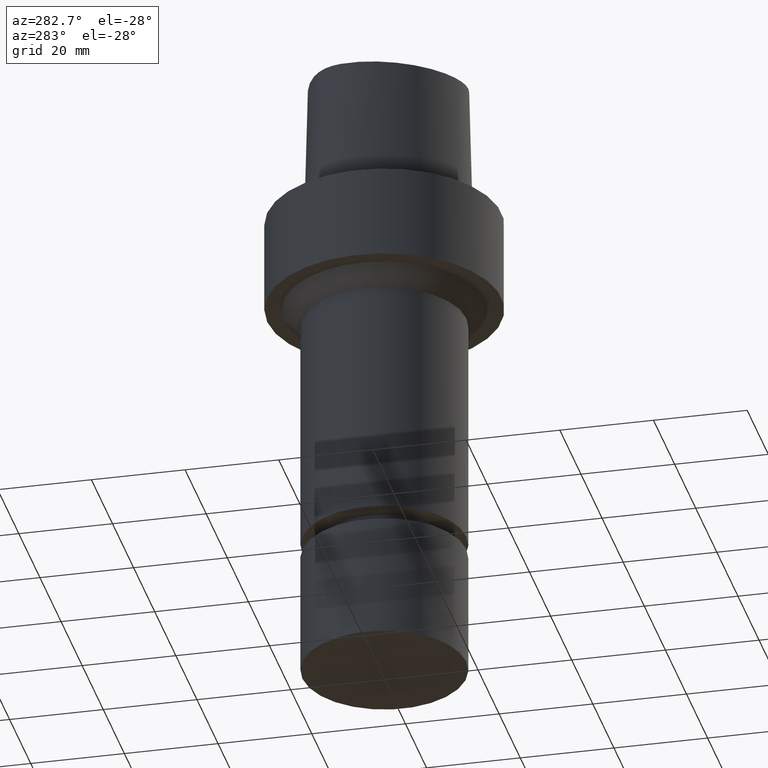
[diagram: clean part render]
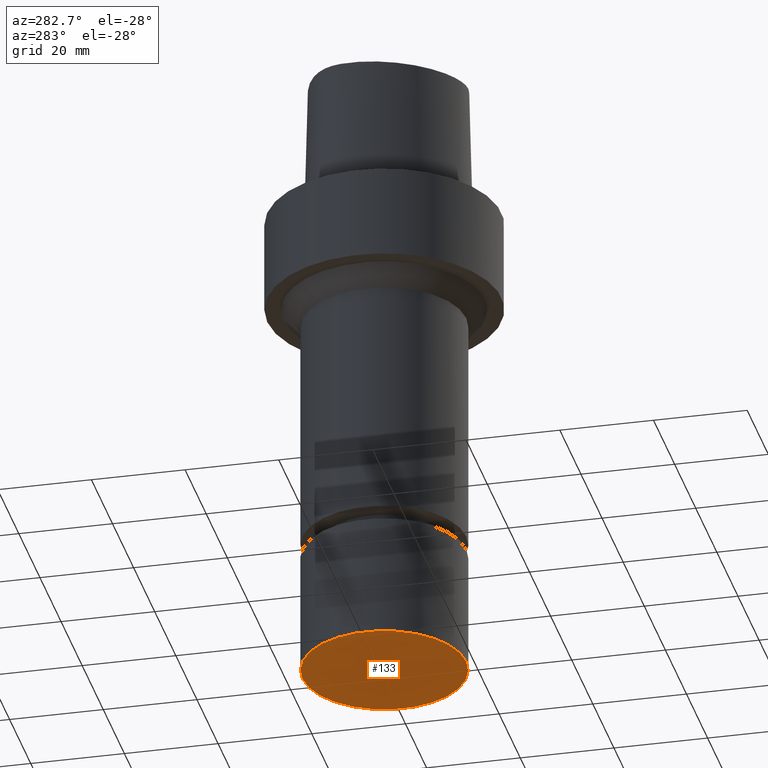
[diagram: same view with one face highlighted and labeled with its STEP entity id]
A machine part, auxiliary view. The second image highlights one B-rep face of the part: STEP entity #133.
In plain terms, the highlighted planar face has unit normal (0, 0, -1).
Its self-contained STEP definition (entity closure, byte-faithful):
#92=EDGE_CURVE('Unnamed[1]',#208,#208,#209,.T.);
#133=ADVANCED_FACE('Unnamed[1]',(#270),#271,.T.);
#208=VERTEX_POINT('',#882);
#209=CIRCLE('',#883,17.5);
#270=FACE_OUTER_BOUND('',#961,.T.);
#271=PLANE('',#962);
#882=CARTESIAN_POINT('',(6.4293956955236E-015,17.5,-105.0));
#883=AXIS2_PLACEMENT_3D('',#1027,#1028,#1029);
#961=EDGE_LOOP('',(#1094));
#962=AXIS2_PLACEMENT_3D('',#1095,#1096,#1097);
#1027=CARTESIAN_POINT('',(6.4293956955236E-015,1.28587913910472E-014,-105.0));
#1028=DIRECTION('',(6.12323399573677E-017,1.22464679914735E-016,-1.0));
#1029=DIRECTION('',(-1.23259516440783E-032,1.0,1.22464679914735E-016));
#1094=ORIENTED_EDGE('',*,*,#92,.T.);
#1095=CARTESIAN_POINT('',(6.4293956955236E-015,8.75000000000002,-105.0));
#1096=DIRECTION('',(6.12323399573677E-017,1.22464679914735E-016,-1.0));
#1097=DIRECTION('',(-1.23259516440783E-032,1.0,1.22464679914735E-016));